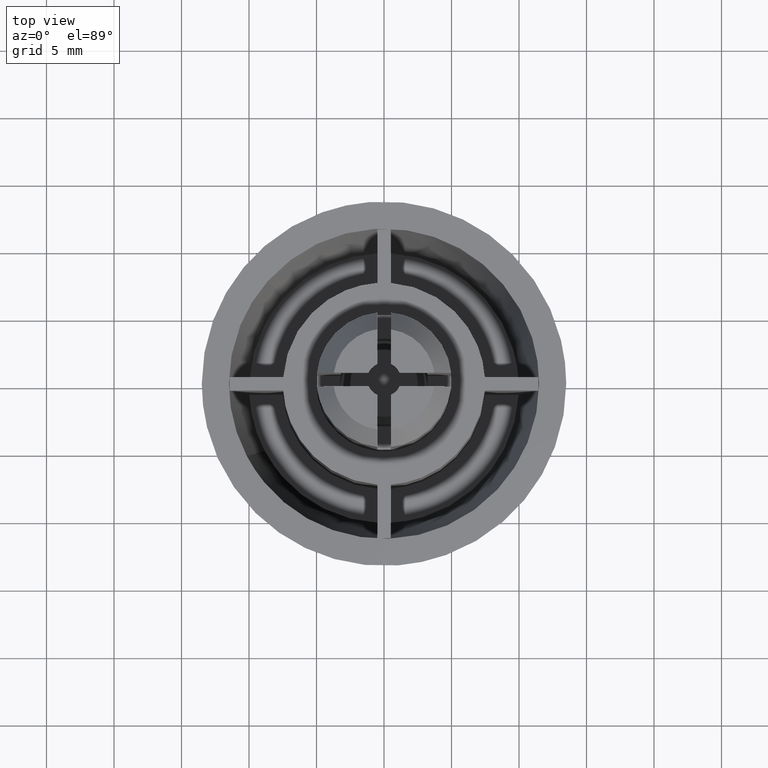
[diagram: clean part render]
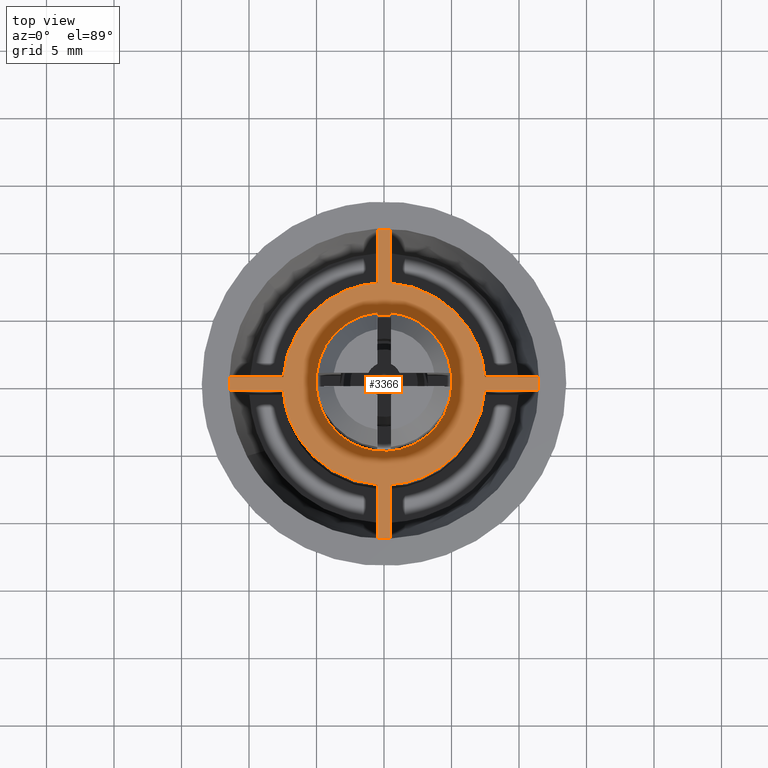
[diagram: same view with one face highlighted and labeled with its STEP entity id]
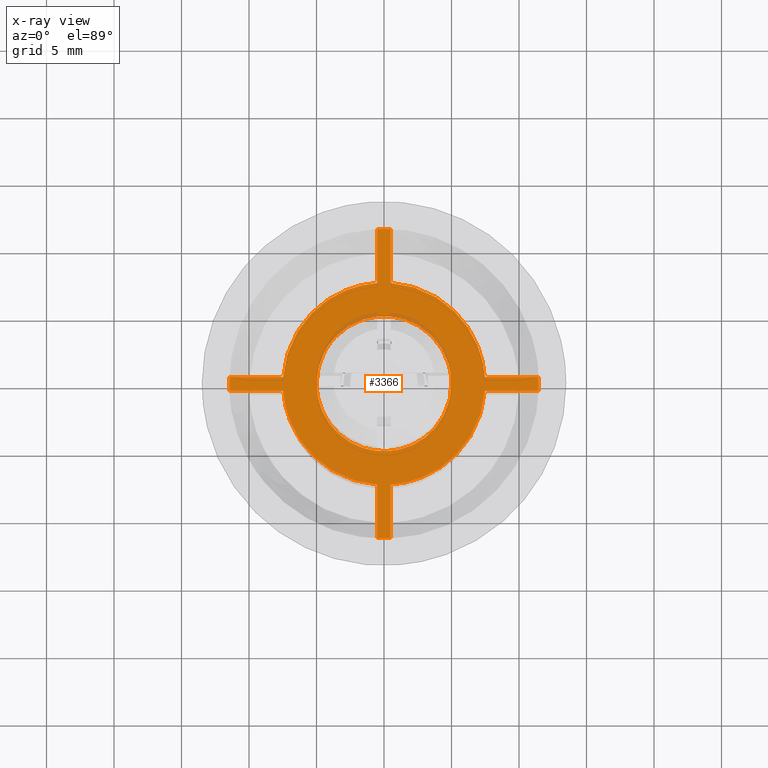
[diagram: x-ray of the same camera — body ghosted, the highlighted face saturated]
A machine part, top view. The second image highlights one B-rep face of the part: STEP entity #3366.
The next image is the same camera in x-ray: the body ghosted, the highlighted face saturated — about 2% of this face is hidden behind the body in this view.
In plain terms, the highlighted face is a freeform B-spline surface patch.
Its self-contained STEP definition (entity closure, byte-faithful):
#2213=CARTESIAN_POINT('',(2.516769428544956,4.320401791907788,-0.500000000000002));
#2214=VERTEX_POINT('',#2213);
#2215=CARTESIAN_POINT('',(5.0,0.0,-0.500000000000000));
#2216=VERTEX_POINT('',#2215);
#2217=CARTESIAN_POINT('',(2.516769428544956,4.320401791907788,-0.500000000000002));
#2218=CARTESIAN_POINT('',(5.000000000000001,2.873842169152005,-0.500000000000000));
#2219=CARTESIAN_POINT('',(5.0,0.0,-0.500000000000000));
#2227=(BOUNDED_CURVE()B_SPLINE_CURVE(2,(#2217,#2218,#2219),.UNSPECIFIED.,.F.,.U.)B_SPLINE_CURVE_WITH_KNOTS((3,3),(0.335865339394797,0.500000000000000),.UNSPECIFIED.)CURVE()GEOMETRIC_REPRESENTATION_ITEM()RATIONAL_B_SPLINE_CURVE((0.867907704477447,0.807704283745954,1.0))REPRESENTATION_ITEM(''));
#2228=EDGE_CURVE('',#2214,#2216,#2227,.T.);
#2384=CARTESIAN_POINT('',(-3.611166475562335,3.458247632222794,-0.500000000000002));
#2385=VERTEX_POINT('',#2384);
#2391=CARTESIAN_POINT('',(-5.0,0.0,-0.500000000000000));
#2392=VERTEX_POINT('',#2391);
#2393=CARTESIAN_POINT('',(-5.0,0.0,-0.500000000000000));
#2394=CARTESIAN_POINT('',(-5.0,2.008001636505146,-0.500000000000000));
#2395=CARTESIAN_POINT('',(-3.611166475562335,3.458247632222794,-0.500000000000002));
#2403=(BOUNDED_CURVE()B_SPLINE_CURVE(2,(#2393,#2394,#2395),.UNSPECIFIED.,.F.,.U.)B_SPLINE_CURVE_WITH_KNOTS((3,3),(0.0,0.121736497674153),.UNSPECIFIED.)CURVE()GEOMETRIC_REPRESENTATION_ITEM()RATIONAL_B_SPLINE_CURVE((1.0,0.857376821396564,0.853653212795828))REPRESENTATION_ITEM(''));
#2404=EDGE_CURVE('',#2392,#2385,#2403,.T.);
#2406=CARTESIAN_POINT('',(5.0,0.0,-0.500000000000000));
#2407=CARTESIAN_POINT('',(5.000000000000001,-5.000000000000001,-0.500000000000000));
#2408=CARTESIAN_POINT('',(0.0,-5.0,-0.500000000000000));
#2409=CARTESIAN_POINT('',(-5.000000000000001,-5.000000000000001,-0.500000000000000));
#2410=CARTESIAN_POINT('',(-5.0,0.0,-0.500000000000000));
#2418=(BOUNDED_CURVE()B_SPLINE_CURVE(2,(#2406,#2407,#2408,#2409,#2410),.UNSPECIFIED.,.F.,.U.)B_SPLINE_CURVE_WITH_KNOTS((3,2,3),(0.500000000000000,0.750000000000000,1.0),.UNSPECIFIED.)CURVE()GEOMETRIC_REPRESENTATION_ITEM()RATIONAL_B_SPLINE_CURVE((1.0,0.707106781186548,1.0,0.707106781186548,1.0))REPRESENTATION_ITEM(''));
#2419=EDGE_CURVE('',#2216,#2392,#2418,.T.);
#2438=CARTESIAN_POINT('',(-3.611166475562336,3.458247632222794,-0.500000000000002));
#2439=CARTESIAN_POINT('',(-2.134701530254600,5.0,-0.500000000000000));
#2440=CARTESIAN_POINT('',(0.0,5.0,-0.500000000000000));
#2441=CARTESIAN_POINT('',(1.350139985773285,5.0,-0.500000000000000));
#2442=CARTESIAN_POINT('',(2.516769428544956,4.320401791907788,-0.500000000000002));
#2450=(BOUNDED_CURVE()B_SPLINE_CURVE(2,(#2438,#2439,#2440,#2441,#2442),.UNSPECIFIED.,.F.,.U.)B_SPLINE_CURVE_WITH_KNOTS((3,2,3),(0.121736497674153,0.250000000000000,0.335865339394797),.UNSPECIFIED.)CURVE()GEOMETRIC_REPRESENTATION_ITEM()RATIONAL_B_SPLINE_CURVE((0.853653212795828,0.849729959789984,1.0,0.899402497440594,0.867907704477447))REPRESENTATION_ITEM(''));
#2451=EDGE_CURVE('',#2385,#2214,#2450,.T.);
#2803=CARTESIAN_POINT('',(-0.499999999999915,11.437173008651300,-0.500000000000000));
#2804=VERTEX_POINT('',#2803);
#2815=CARTESIAN_POINT('',(0.500000000000000,11.437173008651300,-0.500000000000000));
#2816=VERTEX_POINT('',#2815);
#2817=CARTESIAN_POINT('',(0.499999999999999,11.437173008651291,-0.500000000000000));
#2818=CARTESIAN_POINT('',(4.564491E-014,11.459031557071512,-0.500000000000000));
#2819=CARTESIAN_POINT('',(-0.499999999999914,11.437173008651300,-0.500000000000000));
#2827=(BOUNDED_CURVE()B_SPLINE_CURVE(2,(#2817,#2818,#2819),.UNSPECIFIED.,.F.,.U.)CURVE()GEOMETRIC_REPRESENTATION_ITEM()QUASI_UNIFORM_CURVE()RATIONAL_B_SPLINE_CURVE((1.0,0.999045775278953,1.0))REPRESENTATION_ITEM(''));
#2828=EDGE_CURVE('',#2816,#2804,#2827,.T.);
#2857=CARTESIAN_POINT('',(11.437173008651300,0.499999999999915,-0.500000000000000));
#2858=VERTEX_POINT('',#2857);
#2869=CARTESIAN_POINT('',(11.437173008651300,-0.500000000000000,-0.500000000000000));
#2870=VERTEX_POINT('',#2869);
#2871=CARTESIAN_POINT('',(11.437173008651291,-0.500000000000001,-0.500000000000000));
#2872=CARTESIAN_POINT('',(11.459031557071512,-4.737963E-014,-0.500000000000000));
#2873=CARTESIAN_POINT('',(11.437173008651300,0.499999999999914,-0.500000000000000));
#2881=(BOUNDED_CURVE()B_SPLINE_CURVE(2,(#2871,#2872,#2873),.UNSPECIFIED.,.F.,.U.)CURVE()GEOMETRIC_REPRESENTATION_ITEM()QUASI_UNIFORM_CURVE()RATIONAL_B_SPLINE_CURVE((1.0,0.999045775278953,1.0))REPRESENTATION_ITEM(''));
#2882=EDGE_CURVE('',#2870,#2858,#2881,.T.);
#2911=CARTESIAN_POINT('',(0.499999999999915,-11.437173008651300,-0.500000000000000));
#2912=VERTEX_POINT('',#2911);
#2923=CARTESIAN_POINT('',(-0.500000000000000,-11.437173008651300,-0.500000000000000));
#2924=VERTEX_POINT('',#2923);
#2925=CARTESIAN_POINT('',(-0.500000000000000,-11.437173008651291,-0.500000000000000));
#2926=CARTESIAN_POINT('',(-4.586175E-014,-11.459031557071512,-0.500000000000000));
#2927=CARTESIAN_POINT('',(0.499999999999915,-11.437173008651300,-0.500000000000000));
#2935=(BOUNDED_CURVE()B_SPLINE_CURVE(2,(#2925,#2926,#2927),.UNSPECIFIED.,.F.,.U.)CURVE()GEOMETRIC_REPRESENTATION_ITEM()QUASI_UNIFORM_CURVE()RATIONAL_B_SPLINE_CURVE((1.0,0.999045775278953,1.0))REPRESENTATION_ITEM(''));
#2936=EDGE_CURVE('',#2924,#2912,#2935,.T.);
#2980=CARTESIAN_POINT('',(-11.437173008651300,-0.499999999999915,-0.500000000000000));
#2981=VERTEX_POINT('',#2980);
#2992=CARTESIAN_POINT('',(-11.437173008651300,0.500000000000000,-0.500000000000000));
#2993=VERTEX_POINT('',#2992);
#2994=CARTESIAN_POINT('',(-11.437173008651291,0.500000000000000,-0.500000000000000));
#2995=CARTESIAN_POINT('',(-11.459031557071512,4.954804E-014,-0.500000000000000));
#2996=CARTESIAN_POINT('',(-11.437173008651300,-0.499999999999911,-0.500000000000000));
#3004=(BOUNDED_CURVE()B_SPLINE_CURVE(2,(#2994,#2995,#2996),.UNSPECIFIED.,.F.,.U.)CURVE()GEOMETRIC_REPRESENTATION_ITEM()QUASI_UNIFORM_CURVE()RATIONAL_B_SPLINE_CURVE((1.0,0.999045775278953,1.0))REPRESENTATION_ITEM(''));
#3005=EDGE_CURVE('',#2993,#2981,#3004,.T.);
#3070=CARTESIAN_POINT('',(0.499999999999915,-7.466592488493340,-0.500000000000000));
#3071=VERTEX_POINT('',#3070);
#3072=CARTESIAN_POINT('',(0.499999999999915,-7.466592488493340,-0.500000000000000));
#3073=CARTESIAN_POINT('',(0.499999999999915,-11.437173008651300,-0.500000000000000));
#3074=QUASI_UNIFORM_CURVE('',1,(#3072,#3073),.UNSPECIFIED.,.F.,.U.);
#3075=EDGE_CURVE('',#3071,#2912,#3074,.T.);
#3099=CARTESIAN_POINT('',(-0.500000000000000,-7.466592488493331,-0.500000000000000));
#3100=VERTEX_POINT('',#3099);
#3101=CARTESIAN_POINT('',(-0.500000000000000,-7.466592488493331,-0.500000000000000));
#3102=CARTESIAN_POINT('',(-0.500000000000000,-11.437173008651300,-0.500000000000000));
#3103=QUASI_UNIFORM_CURVE('',1,(#3101,#3102),.UNSPECIFIED.,.F.,.U.);
#3104=EDGE_CURVE('',#3100,#2924,#3103,.T.);
#3126=CARTESIAN_POINT('',(7.466592488493340,0.499999999999915,-0.500000000000000));
#3127=VERTEX_POINT('',#3126);
#3128=CARTESIAN_POINT('',(7.466592488493340,0.499999999999915,-0.500000000000000));
#3129=CARTESIAN_POINT('',(11.437173008651300,0.499999999999915,-0.500000000000000));
#3130=QUASI_UNIFORM_CURVE('',1,(#3128,#3129),.UNSPECIFIED.,.F.,.U.);
#3131=EDGE_CURVE('',#3127,#2858,#3130,.T.);
#3155=CARTESIAN_POINT('',(7.466592488493331,-0.500000000000000,-0.500000000000000));
#3156=VERTEX_POINT('',#3155);
#3157=CARTESIAN_POINT('',(7.466592488493331,-0.500000000000000,-0.500000000000000));
#3158=CARTESIAN_POINT('',(11.437173008651300,-0.500000000000000,-0.500000000000000));
#3159=QUASI_UNIFORM_CURVE('',1,(#3157,#3158),.UNSPECIFIED.,.F.,.U.);
#3160=EDGE_CURVE('',#3156,#2870,#3159,.T.);
#3182=CARTESIAN_POINT('',(-0.499999999999915,7.466592488493340,-0.500000000000000));
#3183=VERTEX_POINT('',#3182);
#3184=CARTESIAN_POINT('',(-0.499999999999915,7.466592488493340,-0.500000000000000));
#3185=CARTESIAN_POINT('',(-0.499999999999915,11.437173008651300,-0.500000000000000));
#3186=QUASI_UNIFORM_CURVE('',1,(#3184,#3185),.UNSPECIFIED.,.F.,.U.);
#3187=EDGE_CURVE('',#3183,#2804,#3186,.T.);
#3211=CARTESIAN_POINT('',(0.500000000000000,7.466592488493331,-0.500000000000000));
#3212=VERTEX_POINT('',#3211);
#3213=CARTESIAN_POINT('',(0.500000000000000,7.466592488493331,-0.500000000000000));
#3214=CARTESIAN_POINT('',(0.500000000000000,11.437173008651300,-0.500000000000000));
#3215=QUASI_UNIFORM_CURVE('',1,(#3213,#3214),.UNSPECIFIED.,.F.,.U.);
#3216=EDGE_CURVE('',#3212,#2816,#3215,.T.);
#3238=CARTESIAN_POINT('',(-7.466592488493340,-0.499999999999915,-0.500000000000000));
#3239=VERTEX_POINT('',#3238);
#3240=CARTESIAN_POINT('',(-7.466592488493340,-0.499999999999915,-0.500000000000000));
#3241=CARTESIAN_POINT('',(-11.437173008651300,-0.499999999999915,-0.500000000000000));
#3242=QUASI_UNIFORM_CURVE('',1,(#3240,#3241),.UNSPECIFIED.,.F.,.U.);
#3243=EDGE_CURVE('',#3239,#2981,#3242,.T.);
#3267=CARTESIAN_POINT('',(-7.466592488493331,0.500000000000000,-0.500000000000000));
#3268=VERTEX_POINT('',#3267);
#3269=CARTESIAN_POINT('',(-7.466592488493331,0.500000000000000,-0.500000000000000));
#3270=CARTESIAN_POINT('',(-11.437173008651300,0.500000000000000,-0.500000000000000));
#3271=QUASI_UNIFORM_CURVE('',1,(#3269,#3270),.UNSPECIFIED.,.F.,.U.);
#3272=EDGE_CURVE('',#3268,#2993,#3271,.T.);
#3289=CARTESIAN_POINT('',(-12.591762133317779,-12.591762133317779,-0.500000000000000));
#3290=CARTESIAN_POINT('',(12.591762542733640,-12.591762133317779,-0.500000000000000));
#3291=CARTESIAN_POINT('',(-12.591762133317779,12.591762542733640,-0.500000000000000));
#3292=CARTESIAN_POINT('',(12.591762542733640,12.591762542733640,-0.500000000000000));
#3293=B_SPLINE_SURFACE_WITH_KNOTS('',1,1,((#3289,#3291),(#3290,#3292)),.UNSPECIFIED.,.F.,.F.,.U.,(2,2),(2,2),(0.0,25.183524676051430),(0.0,25.183524676051430),.UNSPECIFIED.);
#3294=CARTESIAN_POINT('',(-0.500000000000001,-7.466592488493329,-0.500000000000000));
#3295=CARTESIAN_POINT('',(-7.029354579151634,-7.029354579151555,-0.500000000000000));
#3296=CARTESIAN_POINT('',(-7.466592488493334,-0.499999999999918,-0.500000000000000));
#3304=(BOUNDED_CURVE()B_SPLINE_CURVE(2,(#3294,#3295,#3296),.UNSPECIFIED.,.F.,.U.)CURVE()GEOMETRIC_REPRESENTATION_ITEM()QUASI_UNIFORM_CURVE()RATIONAL_B_SPLINE_CURVE((1.0,0.752772210118566,1.0))REPRESENTATION_ITEM(''));
#3305=EDGE_CURVE('',#3100,#3239,#3304,.T.);
#3306=ORIENTED_EDGE('',*,*,#3305,.F.);
#3307=ORIENTED_EDGE('',*,*,#3104,.T.);
#3308=ORIENTED_EDGE('',*,*,#2936,.T.);
#3309=ORIENTED_EDGE('',*,*,#3075,.F.);
#3310=CARTESIAN_POINT('',(7.466592488493330,-0.499999999999998,-0.500000000000000));
#3311=CARTESIAN_POINT('',(7.029354579151558,-7.029354579151633,-0.500000000000000));
#3312=CARTESIAN_POINT('',(0.499999999999917,-7.466592488493334,-0.500000000000000));
#3320=(BOUNDED_CURVE()B_SPLINE_CURVE(2,(#3310,#3311,#3312),.UNSPECIFIED.,.F.,.U.)CURVE()GEOMETRIC_REPRESENTATION_ITEM()QUASI_UNIFORM_CURVE()RATIONAL_B_SPLINE_CURVE((1.0,0.752772210118566,1.0))REPRESENTATION_ITEM(''));
#3321=EDGE_CURVE('',#3156,#3071,#3320,.T.);
#3322=ORIENTED_EDGE('',*,*,#3321,.F.);
#3323=ORIENTED_EDGE('',*,*,#3160,.T.);
#3324=ORIENTED_EDGE('',*,*,#2882,.T.);
#3325=ORIENTED_EDGE('',*,*,#3131,.F.);
#3326=CARTESIAN_POINT('',(0.500000000000000,7.466592488493329,-0.500000000000000));
#3327=CARTESIAN_POINT('',(7.029354579151637,7.029354579151557,-0.500000000000000));
#3328=CARTESIAN_POINT('',(7.466592488493334,0.499999999999914,-0.500000000000000));
#3336=(BOUNDED_CURVE()B_SPLINE_CURVE(2,(#3326,#3327,#3328),.UNSPECIFIED.,.F.,.U.)CURVE()GEOMETRIC_REPRESENTATION_ITEM()QUASI_UNIFORM_CURVE()RATIONAL_B_SPLINE_CURVE((1.0,0.752772210118566,1.0))REPRESENTATION_ITEM(''));
#3337=EDGE_CURVE('',#3212,#3127,#3336,.T.);
#3338=ORIENTED_EDGE('',*,*,#3337,.F.);
#3339=ORIENTED_EDGE('',*,*,#3216,.T.);
#3340=ORIENTED_EDGE('',*,*,#2828,.T.);
#3341=ORIENTED_EDGE('',*,*,#3187,.F.);
#3342=CARTESIAN_POINT('',(-7.466592488493329,0.500000000000000,-0.500000000000000));
#3343=CARTESIAN_POINT('',(-7.029354579151557,7.029354579151636,-0.500000000000000));
#3344=CARTESIAN_POINT('',(-0.499999999999915,7.466592488493334,-0.500000000000000));
#3352=(BOUNDED_CURVE()B_SPLINE_CURVE(2,(#3342,#3343,#3344),.UNSPECIFIED.,.F.,.U.)CURVE()GEOMETRIC_REPRESENTATION_ITEM()QUASI_UNIFORM_CURVE()RATIONAL_B_SPLINE_CURVE((1.0,0.752772210118566,1.0))REPRESENTATION_ITEM(''));
#3353=EDGE_CURVE('',#3268,#3183,#3352,.T.);
#3354=ORIENTED_EDGE('',*,*,#3353,.F.);
#3355=ORIENTED_EDGE('',*,*,#3272,.T.);
#3356=ORIENTED_EDGE('',*,*,#3005,.T.);
#3357=ORIENTED_EDGE('',*,*,#3243,.F.);
#3358=EDGE_LOOP('',(#3306,#3307,#3308,#3309,#3322,#3323,#3324,#3325,#3338,#3339,#3340,#3341,#3354,#3355,#3356,#3357));
#3359=FACE_OUTER_BOUND('',#3358,.T.);
#3360=ORIENTED_EDGE('',*,*,#2419,.T.);
#3361=ORIENTED_EDGE('',*,*,#2404,.T.);
#3362=ORIENTED_EDGE('',*,*,#2451,.T.);
#3363=ORIENTED_EDGE('',*,*,#2228,.T.);
#3364=EDGE_LOOP('',(#3360,#3361,#3362,#3363));
#3365=FACE_BOUND('',#3364,.T.);
#3366=ADVANCED_FACE('',(#3359,#3365),#3293,.T.);